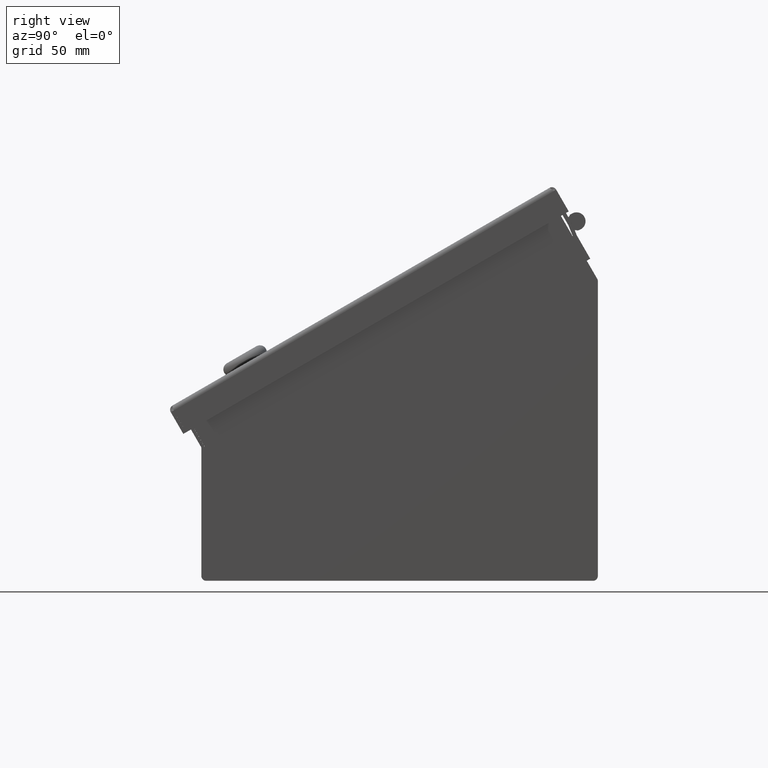
[diagram: clean part render]
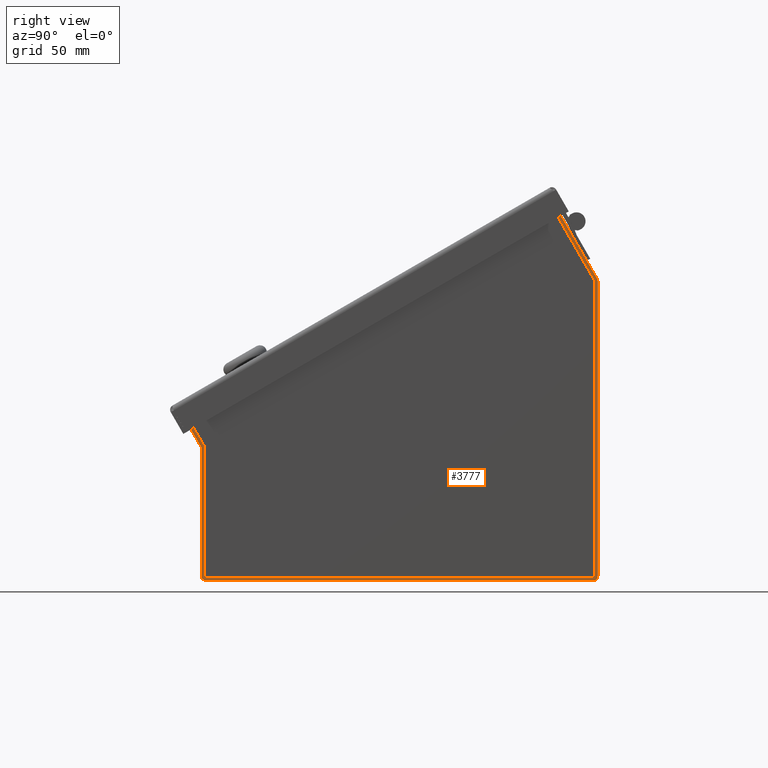
[diagram: same view with one face highlighted and labeled with its STEP entity id]
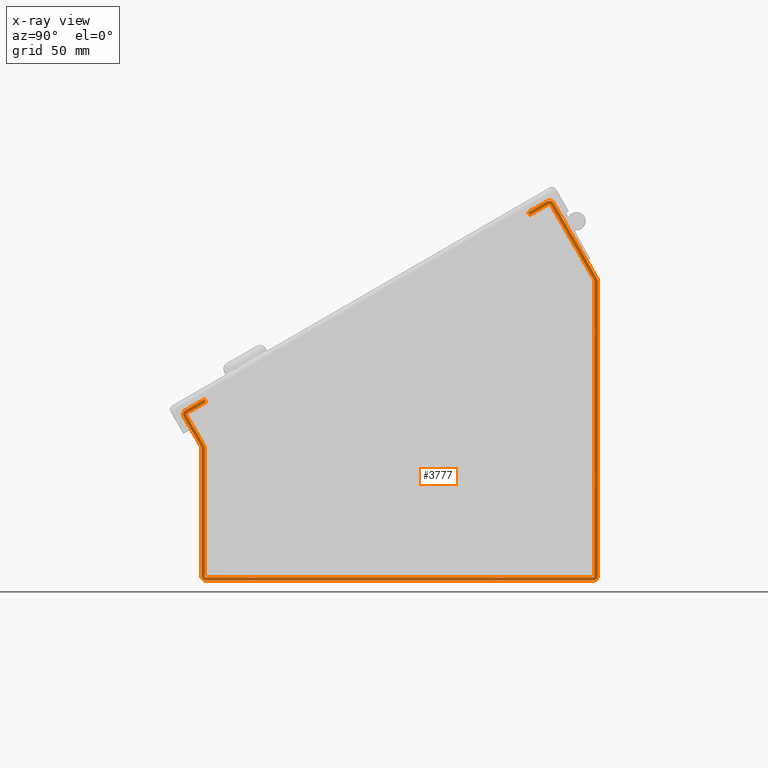
[diagram: x-ray of the same camera — body ghosted, the highlighted face saturated]
A machine part, right view. The second image highlights one B-rep face of the part: STEP entity #3777.
The next image is the same camera in x-ray: the body ghosted, the highlighted face saturated — about 0% of this face is hidden behind the body in this view.
In plain terms, the highlighted planar face has unit normal (-1, 0, 0).
Its self-contained STEP definition (entity closure, byte-faithful):
#3777 = ADVANCED_FACE( '', ( #8429 ), #8430, .F. );
#8429 = FACE_OUTER_BOUND( '', #27630, .T. );
#8430 = PLANE( '', #27631 );
#27630 = EDGE_LOOP( '', ( #53384, #53385, #53386, #53387, #53388, #53389, #53390, #53391, #53392, #53393, #53394, #53395, #53396, #53397, #53398, #53399, #53400, #53401, #53402, #53403, #53404, #53405, #53406, #53407, #53408, #53409, #53410, #53411 ) );
#27631 = AXIS2_PLACEMENT_3D( '', #53412, #53413, #53414 );
#53384 = ORIENTED_EDGE( '', *, *, #68041, .F. );
#53385 = ORIENTED_EDGE( '', *, *, #66070, .F. );
#53386 = ORIENTED_EDGE( '', *, *, #68042, .T. );
#53387 = ORIENTED_EDGE( '', *, *, #67885, .F. );
#53388 = ORIENTED_EDGE( '', *, *, #68043, .F. );
#53389 = ORIENTED_EDGE( '', *, *, #68044, .T. );
#53390 = ORIENTED_EDGE( '', *, *, #68045, .T. );
#53391 = ORIENTED_EDGE( '', *, *, #64714, .F. );
#53392 = ORIENTED_EDGE( '', *, *, #66748, .F. );
#53393 = ORIENTED_EDGE( '', *, *, #68046, .T. );
#53394 = ORIENTED_EDGE( '', *, *, #68047, .T. );
#53395 = ORIENTED_EDGE( '', *, *, #68048, .T. );
#53396 = ORIENTED_EDGE( '', *, *, #68049, .F. );
#53397 = ORIENTED_EDGE( '', *, *, #68050, .F. );
#53398 = ORIENTED_EDGE( '', *, *, #68051, .F. );
#53399 = ORIENTED_EDGE( '', *, *, #68052, .F. );
#53400 = ORIENTED_EDGE( '', *, *, #65962, .F. );
#53401 = ORIENTED_EDGE( '', *, *, #68053, .T. );
#53402 = ORIENTED_EDGE( '', *, *, #67911, .T. );
#53403 = ORIENTED_EDGE( '', *, *, #68054, .T. );
#53404 = ORIENTED_EDGE( '', *, *, #67772, .T. );
#53405 = ORIENTED_EDGE( '', *, *, #68055, .T. );
#53406 = ORIENTED_EDGE( '', *, *, #65246, .T. );
#53407 = ORIENTED_EDGE( '', *, *, #68056, .F. );
#53408 = ORIENTED_EDGE( '', *, *, #68057, .F. );
#53409 = ORIENTED_EDGE( '', *, *, #68058, .F. );
#53410 = ORIENTED_EDGE( '', *, *, #68059, .T. );
#53411 = ORIENTED_EDGE( '', *, *, #67576, .T. );
#53412 = CARTESIAN_POINT( '', ( 100.076000000000, -94.3229000000000, 1.52400000000000 ) );
#53413 = DIRECTION( '', ( -1.00000000000000, 0.000000000000000, 0.000000000000000 ) );
#53414 = DIRECTION( '', ( 0.000000000000000, 0.000000000000000, 1.00000000000000 ) );
#64714 = EDGE_CURVE( '', #70621, #70623, #70624, .T. );
#65246 = EDGE_CURVE( '', #71582, #71586, #71588, .T. );
#65962 = EDGE_CURVE( '', #72839, #72840, #72841, .T. );
#66070 = EDGE_CURVE( '', #73016, #73011, #73018, .F. );
#66748 = EDGE_CURVE( '', #74093, #70621, #74095, .T. );
#67576 = EDGE_CURVE( '', #75349, #75353, #75355, .T. );
#67772 = EDGE_CURVE( '', #75651, #75655, #75657, .T. );
#67885 = EDGE_CURVE( '', #75830, #75825, #75832, .T. );
#67911 = EDGE_CURVE( '', #75871, #75868, #75872, .T. );
#68041 = EDGE_CURVE( '', #73011, #75353, #76058, .T. );
#68042 = EDGE_CURVE( '', #73016, #75825, #76059, .T. );
#68043 = EDGE_CURVE( '', #76060, #75830, #76061, .T. );
#68044 = EDGE_CURVE( '', #76060, #76062, #76063, .T. );
#68045 = EDGE_CURVE( '', #76062, #70623, #76064, .T. );
#68046 = EDGE_CURVE( '', #74093, #76065, #76066, .T. );
#68047 = EDGE_CURVE( '', #76065, #76067, #76068, .T. );
#68048 = EDGE_CURVE( '', #76067, #76069, #76070, .T. );
#68049 = EDGE_CURVE( '', #76071, #76069, #76072, .T. );
#68050 = EDGE_CURVE( '', #76073, #76071, #76074, .T. );
#68051 = EDGE_CURVE( '', #76075, #76073, #76076, .T. );
#68052 = EDGE_CURVE( '', #72840, #76075, #76077, .T. );
#68053 = EDGE_CURVE( '', #72839, #75871, #76078, .T. );
#68054 = EDGE_CURVE( '', #75868, #75651, #76079, .F. );
#68055 = EDGE_CURVE( '', #75655, #71582, #76080, .F. );
#68056 = EDGE_CURVE( '', #76081, #71586, #76082, .T. );
#68057 = EDGE_CURVE( '', #76083, #76081, #76084, .T. );
#68058 = EDGE_CURVE( '', #76085, #76083, #76086, .F. );
#68059 = EDGE_CURVE( '', #76085, #75349, #76087, .T. );
#70621 = VERTEX_POINT( '', #79412 );
#70623 = VERTEX_POINT( '', #79415 );
#70624 = CIRCLE( '', #79416, 0.812800000000000 );
#71582 = VERTEX_POINT( '', #82245 );
#71586 = VERTEX_POINT( '', #82251 );
#71588 = LINE( '', #82254, #82255 );
#72839 = VERTEX_POINT( '', #86171 );
#72840 = VERTEX_POINT( '', #86172 );
#72841 = LINE( '', #86173, #86174 );
#73011 = VERTEX_POINT( '', #86616 );
#73016 = VERTEX_POINT( '', #86622 );
#73018 = CIRCLE( '', #86625, 0.812800000000000 );
#74093 = VERTEX_POINT( '', #89797 );
#74095 = LINE( '', #89800, #89801 );
#75349 = VERTEX_POINT( '', #93463 );
#75353 = VERTEX_POINT( '', #93468 );
#75355 = CIRCLE( '', #93471, 2.33680000000000 );
#75651 = VERTEX_POINT( '', #94441 );
#75655 = VERTEX_POINT( '', #94447 );
#75657 = LINE( '', #94450, #94451 );
#75825 = VERTEX_POINT( '', #94942 );
#75830 = VERTEX_POINT( '', #94949 );
#75832 = LINE( '', #94952, #94953 );
#75868 = VERTEX_POINT( '', #95055 );
#75871 = VERTEX_POINT( '', #95059 );
#75872 = LINE( '', #95060, #95061 );
#76058 = LINE( '', #95646, #95647 );
#76059 = LINE( '', #95648, #95649 );
#76060 = VERTEX_POINT( '', #95650 );
#76061 = LINE( '', #95651, #95652 );
#76062 = VERTEX_POINT( '', #95653 );
#76063 = CIRCLE( '', #95654, 2.33680000000000 );
#76064 = LINE( '', #95655, #95656 );
#76065 = VERTEX_POINT( '', #95657 );
#76066 = CIRCLE( '', #95658, 2.33680000000000 );
#76067 = VERTEX_POINT( '', #95659 );
#76068 = LINE( '', #95660, #95661 );
#76069 = VERTEX_POINT( '', #95662 );
#76070 = CIRCLE( '', #95663, 2.33680000000000 );
#76071 = VERTEX_POINT( '', #95664 );
#76072 = LINE( '', #95665, #95666 );
#76073 = VERTEX_POINT( '', #95667 );
#76074 = CIRCLE( '', #95668, 2.33680000000000 );
#76075 = VERTEX_POINT( '', #95669 );
#76076 = LINE( '', #95670, #95671 );
#76077 = CIRCLE( '', #95672, 2.33680000000000 );
#76078 = LINE( '', #95673, #95674 );
#76079 = CIRCLE( '', #95675, 0.812800000000000 );
#76080 = CIRCLE( '', #95676, 0.812800000000000 );
#76081 = VERTEX_POINT( '', #95677 );
#76082 = CIRCLE( '', #95678, 0.812800000000000 );
#76083 = VERTEX_POINT( '', #95679 );
#76084 = LINE( '', #95680, #95681 );
#76085 = VERTEX_POINT( '', #95682 );
#76086 = CIRCLE( '', #95683, 0.812800000000000 );
#76087 = LINE( '', #95684, #95685 );
#79412 = CARTESIAN_POINT( '', ( 100.076000000000, -94.3229000000000, 63.2314108963921 ) );
#79415 = CARTESIAN_POINT( '', ( 100.076000000000, -94.4317945518040, 63.6378108963921 ) );
#79416 = AXIS2_PLACEMENT_3D( '', #103743, #103744, #103745 );
#82245 = CARTESIAN_POINT( '', ( 100.076000000000, 92.7989000000000, 142.479410896392 ) );
#82251 = CARTESIAN_POINT( '', ( 100.076000000000, 92.7989000000000, 2.33680000000000 ) );
#82254 = CARTESIAN_POINT( '', ( 100.076000000000, 92.7989000000000, 1.39679777893409 ) );
#82255 = VECTOR( '', #104027, 1000.00000000000 );
#86171 = CARTESIAN_POINT( '', ( 100.076000000000, 61.0993773719376, 175.250383767484 ) );
#86172 = CARTESIAN_POINT( '', ( 100.076000000000, 70.0741718364365, 180.431983767483 ) );
#86173 = CARTESIAN_POINT( '', ( 100.076000000000, 70.8882376394933, 180.901984878017 ) );
#86174 = VECTOR( '', #104343, 1000.00000000000 );
#86616 = CARTESIAN_POINT( '', ( 100.076000000000, -101.358700000000, 78.6835630718931 ) );
#86622 = CARTESIAN_POINT( '', ( 100.076000000000, -101.061194551804, 79.7938685200891 ) );
#86625 = AXIS2_PLACEMENT_3D( '', #104404, #104405, #104406 );
#89797 = CARTESIAN_POINT( '', ( 100.076000000000, -94.3229000000000, 2.33680000000000 ) );
#89800 = CARTESIAN_POINT( '', ( 100.076000000000, -94.3229000000000, 1.39679777893409 ) );
#89801 = VECTOR( '', #104810, 1000.00000000000 );
#93463 = CARTESIAN_POINT( '', ( 100.076000000000, -92.7989000000000, 63.2314108963921 ) );
#93468 = CARTESIAN_POINT( '', ( 100.076000000000, -93.1119718364365, 64.3998108963921 ) );
#93471 = AXIS2_PLACEMENT_3D( '', #105292, #105293, #105294 );
#94441 = CARTESIAN_POINT( '', ( 100.076000000000, 71.9464772846325, 178.814655603920 ) );
#94447 = CARTESIAN_POINT( '', ( 100.076000000000, 92.6900054481959, 142.885810896392 ) );
#94450 = CARTESIAN_POINT( '', ( 100.076000000000, 92.7973981750650, 142.699801237091 ) );
#94451 = VECTOR( '', #105380, 1000.00000000000 );
#94942 = CARTESIAN_POINT( '', ( 100.076000000000, -92.0864000873051, 84.9754685200892 ) );
#94949 = CARTESIAN_POINT( '', ( 100.076000000000, -92.8484000873051, 86.2952912354566 ) );
#94952 = CARTESIAN_POINT( '', ( 100.076000000000, -92.8484000873051, 86.2952912354566 ) );
#94953 = VECTOR( '', #105466, 1000.00000000000 );
#95055 = CARTESIAN_POINT( '', ( 100.076000000000, 70.8361718364365, 179.112161052116 ) );
#95059 = CARTESIAN_POINT( '', ( 100.076000000000, 61.8613773719376, 173.930561052116 ) );
#95060 = CARTESIAN_POINT( '', ( 100.076000000000, 71.6502376394933, 179.582162162649 ) );
#95061 = VECTOR( '', #105478, 1000.00000000000 );
#95646 = CARTESIAN_POINT( '', ( 100.076000000000, -93.0045791095674, 64.2138012370914 ) );
#95647 = VECTOR( '', #105548, 1000.00000000000 );
#95648 = CARTESIAN_POINT( '', ( 100.076000000000, -101.875260354861, 79.3238674095562 ) );
#95649 = VECTOR( '', #105549, 1000.00000000000 );
#95650 = CARTESIAN_POINT( '', ( 100.076000000000, -101.823194551804, 81.1136912354566 ) );
#95651 = CARTESIAN_POINT( '', ( 100.076000000000, -102.637260354861, 80.6436901249237 ) );
#95652 = VECTOR( '', #105550, 1000.00000000000 );
#95653 = CARTESIAN_POINT( '', ( 100.076000000000, -102.678522715367, 77.9215630718931 ) );
#95654 = AXIS2_PLACEMENT_3D( '', #105551, #105552, #105553 );
#95655 = CARTESIAN_POINT( '', ( 100.076000000000, -94.3244018249349, 63.4518012370914 ) );
#95656 = VECTOR( '', #105554, 1000.00000000000 );
#95657 = CARTESIAN_POINT( '', ( 100.076000000000, -91.9861000000000, 0.000000000000000 ) );
#95658 = AXIS2_PLACEMENT_3D( '', #105555, #105556, #105557 );
#95659 = CARTESIAN_POINT( '', ( 100.076000000000, 91.9861000000000, 0.000000000000000 ) );
#95660 = CARTESIAN_POINT( '', ( 100.076000000000, -94.3229000000000, 0.000000000000000 ) );
#95661 = VECTOR( '', #105558, 1000.00000000000 );
#95662 = CARTESIAN_POINT( '', ( 100.076000000000, 94.3229000000000, 2.33680000000000 ) );
#95663 = AXIS2_PLACEMENT_3D( '', #105559, #105560, #105561 );
#95664 = CARTESIAN_POINT( '', ( 100.076000000000, 94.3229000000000, 142.479410896392 ) );
#95665 = CARTESIAN_POINT( '', ( 100.076000000000, 94.3229000000000, 1.39679777893409 ) );
#95666 = VECTOR( '', #105562, 1000.00000000000 );
#95667 = CARTESIAN_POINT( '', ( 100.076000000000, 94.0098281635634, 143.647810896392 ) );
#95668 = AXIS2_PLACEMENT_3D( '', #105563, #105564, #105565 );
#95669 = CARTESIAN_POINT( '', ( 100.076000000000, 73.2663000000000, 179.576655603920 ) );
#95670 = CARTESIAN_POINT( '', ( 100.076000000000, 94.1172208904325, 143.461801237091 ) );
#95671 = VECTOR( '', #105566, 1000.00000000000 );
#95672 = AXIS2_PLACEMENT_3D( '', #105567, #105568, #105569 );
#95673 = CARTESIAN_POINT( '', ( 100.076000000000, 61.0993773719376, 175.250383767484 ) );
#95674 = VECTOR( '', #105570, 1000.00000000000 );
#95675 = AXIS2_PLACEMENT_3D( '', #105571, #105572, #105573 );
#95676 = AXIS2_PLACEMENT_3D( '', #105574, #105575, #105576 );
#95677 = CARTESIAN_POINT( '', ( 100.076000000000, 91.9861000000000, 1.52400000000000 ) );
#95678 = AXIS2_PLACEMENT_3D( '', #105577, #105578, #105579 );
#95679 = CARTESIAN_POINT( '', ( 100.076000000000, -91.9861000000000, 1.52400000000000 ) );
#95680 = CARTESIAN_POINT( '', ( 100.076000000000, -94.3229000000000, 1.52400000000000 ) );
#95681 = VECTOR( '', #105580, 1000.00000000000 );
#95682 = CARTESIAN_POINT( '', ( 100.076000000000, -92.7989000000000, 2.33680000000000 ) );
#95683 = AXIS2_PLACEMENT_3D( '', #105581, #105582, #105583 );
#95684 = CARTESIAN_POINT( '', ( 100.076000000000, -92.7989000000000, 1.39679777893409 ) );
#95685 = VECTOR( '', #105584, 1000.00000000000 );
#103743 = CARTESIAN_POINT( '', ( 100.076000000000, -95.1357000000000, 63.2314108963921 ) );
#103744 = DIRECTION( '', ( 1.00000000000000, 0.000000000000000, 0.000000000000000 ) );
#103745 = DIRECTION( '', ( 0.000000000000000, 0.000000000000000, -1.00000000000000 ) );
#104027 = DIRECTION( '', ( 0.000000000000000, 6.12323399573677E-017, -1.00000000000000 ) );
#104343 = DIRECTION( '', ( 0.000000000000000, 0.866025403784439, 0.500000000000000 ) );
#104404 = CARTESIAN_POINT( '', ( 100.076000000000, -100.654794551804, 79.0899630718932 ) );
#104405 = DIRECTION( '', ( -1.00000000000000, 0.000000000000000, 0.000000000000000 ) );
#104406 = DIRECTION( '', ( 0.000000000000000, 0.000000000000000, 1.00000000000000 ) );
#104810 = DIRECTION( '', ( -4.26350293833476E-016, 6.12323399573677E-017, 1.00000000000000 ) );
#105292 = CARTESIAN_POINT( '', ( 100.076000000000, -95.1357000000000, 63.2314108963921 ) );
#105293 = DIRECTION( '', ( 1.00000000000000, 0.000000000000000, 0.000000000000000 ) );
#105294 = DIRECTION( '', ( 0.000000000000000, -1.00000000000000, 6.12323399573677E-017 ) );
#105380 = DIRECTION( '', ( 0.000000000000000, 0.500000000000000, -0.866025403784439 ) );
#105466 = DIRECTION( '', ( 6.98301282591763E-018, 0.500000000000000, -0.866025403784439 ) );
#105478 = DIRECTION( '', ( 0.000000000000000, 0.866025403784439, 0.500000000000000 ) );
#105548 = DIRECTION( '', ( 1.45736491077249E-015, 0.500000000000000, -0.866025403784439 ) );
#105549 = DIRECTION( '', ( 0.000000000000000, 0.866025403784439, 0.500000000000000 ) );
#105550 = DIRECTION( '', ( 0.000000000000000, 0.866025403784439, 0.500000000000000 ) );
#105551 = CARTESIAN_POINT( '', ( 100.076000000000, -100.654794551804, 79.0899630718932 ) );
#105552 = DIRECTION( '', ( 1.00000000000000, 0.000000000000000, -0.000000000000000 ) );
#105553 = DIRECTION( '', ( 0.000000000000000, 0.866025403784439, 0.500000000000000 ) );
#105554 = DIRECTION( '', ( 1.45736491077249E-015, 0.500000000000000, -0.866025403784439 ) );
#105555 = CARTESIAN_POINT( '', ( 100.076000000000, -91.9861000000000, 2.33680000000000 ) );
#105556 = DIRECTION( '', ( 1.00000000000000, -6.93362434940168E-017, 0.000000000000000 ) );
#105557 = DIRECTION( '', ( 0.000000000000000, 0.000000000000000, 1.00000000000000 ) );
#105558 = DIRECTION( '', ( 0.000000000000000, 1.00000000000000, 0.000000000000000 ) );
#105559 = CARTESIAN_POINT( '', ( 100.076000000000, 91.9861000000000, 2.33680000000000 ) );
#105560 = DIRECTION( '', ( 1.00000000000000, 0.000000000000000, -0.000000000000000 ) );
#105561 = DIRECTION( '', ( 0.000000000000000, 0.000000000000000, 1.00000000000000 ) );
#105562 = DIRECTION( '', ( 0.000000000000000, 6.12323399573677E-017, -1.00000000000000 ) );
#105563 = CARTESIAN_POINT( '', ( 100.076000000000, 91.9861000000000, 142.479410896392 ) );
#105564 = DIRECTION( '', ( -1.00000000000000, -0.000000000000000, 0.000000000000000 ) );
#105565 = DIRECTION( '', ( 0.000000000000000, -1.00000000000000, -6.12323399573677E-017 ) );
#105566 = DIRECTION( '', ( 0.000000000000000, 0.500000000000000, -0.866025403784439 ) );
#105567 = CARTESIAN_POINT( '', ( 100.076000000000, 71.2425718364365, 178.408255603920 ) );
#105568 = DIRECTION( '', ( -1.00000000000000, -0.000000000000000, 0.000000000000000 ) );
#105569 = DIRECTION( '', ( 0.000000000000000, -0.866025403784439, -0.500000000000000 ) );
#105570 = DIRECTION( '', ( 6.98301282591763E-018, 0.500000000000000, -0.866025403784439 ) );
#105571 = CARTESIAN_POINT( '', ( 100.076000000000, 71.2425718364365, 178.408255603920 ) );
#105572 = DIRECTION( '', ( 1.00000000000000, 0.000000000000000, 0.000000000000000 ) );
#105573 = DIRECTION( '', ( 0.000000000000000, 0.000000000000000, -1.00000000000000 ) );
#105574 = CARTESIAN_POINT( '', ( 100.076000000000, 91.9861000000000, 142.479410896392 ) );
#105575 = DIRECTION( '', ( 1.00000000000000, 0.000000000000000, 0.000000000000000 ) );
#105576 = DIRECTION( '', ( 0.000000000000000, 0.000000000000000, -1.00000000000000 ) );
#105577 = CARTESIAN_POINT( '', ( 100.076000000000, 91.9861000000000, 2.33680000000000 ) );
#105578 = DIRECTION( '', ( 1.00000000000000, 0.000000000000000, 0.000000000000000 ) );
#105579 = DIRECTION( '', ( 0.000000000000000, 0.000000000000000, -1.00000000000000 ) );
#105580 = DIRECTION( '', ( 0.000000000000000, 1.00000000000000, 0.000000000000000 ) );
#105581 = CARTESIAN_POINT( '', ( 100.076000000000, -91.9861000000000, 2.33680000000000 ) );
#105582 = DIRECTION( '', ( -1.00000000000000, 6.93362434940168E-017, 0.000000000000000 ) );
#105583 = DIRECTION( '', ( -6.93362434940168E-017, -1.00000000000000, 0.000000000000000 ) );
#105584 = DIRECTION( '', ( -4.26350293833476E-016, 6.12323399573677E-017, 1.00000000000000 ) );